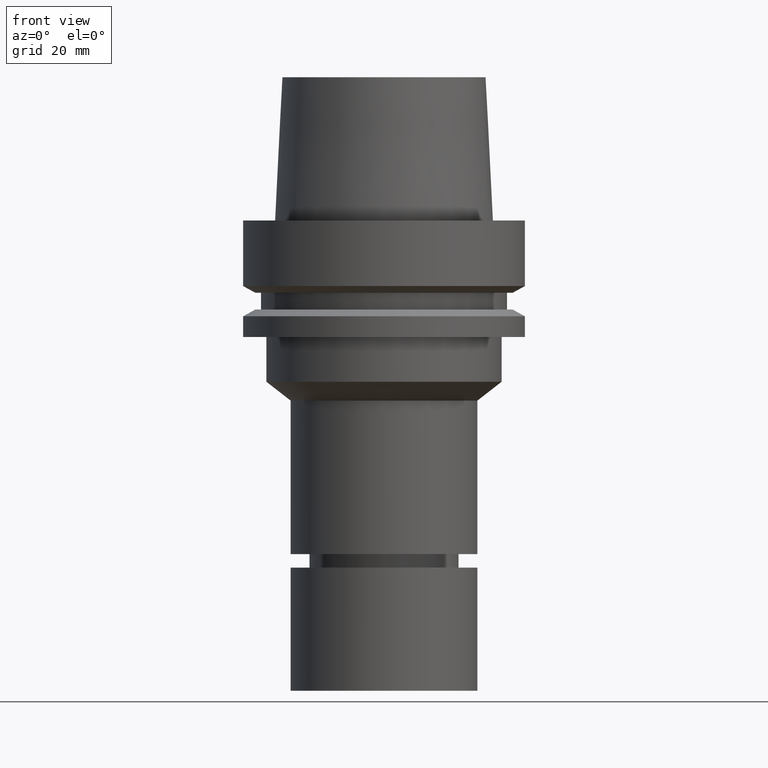
[diagram: clean part render]
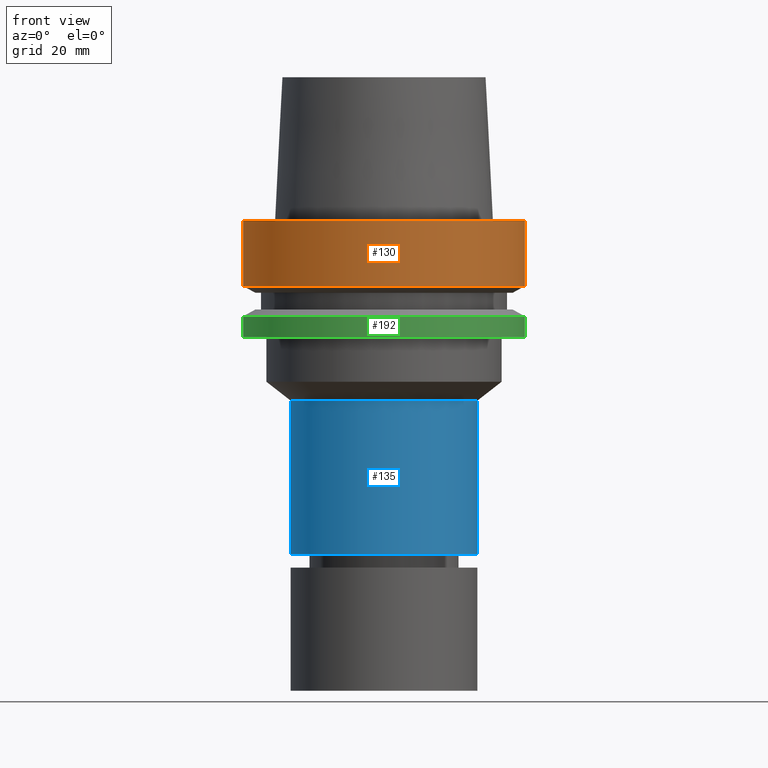
[diagram: same view with three faces highlighted in distinct colors, each labeled with its STEP entity id]
A machine part, front view with three faces highlighted in distinct colors.
Their STEP definitions:

[orange] entity #130 — the highlighted cylindrical surface (bore or boss wall) has radius 31.5 mm, axis along (-0, -0, 1).
#107=EDGE_CURVE('Unnamed[1]',#259,#259,#260,.T.);
#130=ADVANCED_FACE('Unnamed[1]',(#294,#295),#296,.T.);
#186=EDGE_CURVE('Unnamed[1]',#379,#379,#380,.T.);
#259=VERTEX_POINT('',#462);
#260=CIRCLE('',#463,31.5000000000001);
#294=FACE_BOUND('',#504,.T.);
#295=FACE_BOUND('',#505,.T.);
#296=CYLINDRICAL_SURFACE('',#506,31.5);
#379=VERTEX_POINT('',#611);
#380=CIRCLE('',#612,31.5);
#462=CARTESIAN_POINT('',(-3.88267476788467E-031,31.5000000000001,3.85763741731417E-015));
#463=AXIS2_PLACEMENT_3D('',#680,#681,#682);
#504=EDGE_LOOP('',(#718));
#505=EDGE_LOOP('',(#719));
#506=AXIS2_PLACEMENT_3D('',#720,#721,#722);
#611=CARTESIAN_POINT('',(8.95369947681261E-016,31.5,-14.6225009252407));
#612=AXIS2_PLACEMENT_3D('',#811,#812,#813);
#680=CARTESIAN_POINT('',(0.0,0.0,0.0));
#681=DIRECTION('',(-6.12323399573677E-017,-1.22464679914735E-016,1.0));
#682=DIRECTION('',(-1.23259516440783E-032,1.0,1.22464679914735E-016));
#718=ORIENTED_EDGE('',*,*,#107,.F.);
#719=ORIENTED_EDGE('',*,*,#186,.T.);
#720=CARTESIAN_POINT('',(4.47684973840631E-016,8.95369947681262E-016,-7.31125046262035));
#721=DIRECTION('',(-6.12323399573677E-017,-1.22464679914735E-016,1.0));
#722=DIRECTION('',(-1.23259516440783E-032,1.0,1.22464679914735E-016));
#811=CARTESIAN_POINT('',(8.95369947681262E-016,1.79073989536252E-015,-14.6225009252407));
#812=DIRECTION('',(-6.12323399573677E-017,-1.22464679914735E-016,1.0));
#813=DIRECTION('',(-1.23259516440783E-032,1.0,1.22464679914735E-016));

[blue] entity #135 — the highlighted cylindrical surface (bore or boss wall) has radius 21 mm, axis along (-0, -0, 1).
#135=ADVANCED_FACE('Unnamed[1]',(#302,#303),#304,.T.);
#145=EDGE_CURVE('Unnamed[1]',#319,#319,#320,.T.);
#162=EDGE_CURVE('Unnamed[1]',#343,#343,#344,.T.);
#302=FACE_BOUND('',#514,.T.);
#303=FACE_BOUND('',#515,.T.);
#304=CYLINDRICAL_SURFACE('',#516,21.0);
#319=VERTEX_POINT('',#535);
#320=CIRCLE('',#536,21.0);
#343=VERTEX_POINT('',#565);
#344=CIRCLE('',#566,21.0);
#514=EDGE_LOOP('',(#727));
#515=EDGE_LOOP('',(#728));
#516=AXIS2_PLACEMENT_3D('',#729,#730,#731);
#535=CARTESIAN_POINT('',(2.46243754685596E-015,21.0,-40.21465697));
#536=AXIS2_PLACEMENT_3D('',#747,#748,#749);
#565=CARTESIAN_POINT('',(4.56180932682389E-015,21.0,-74.5));
#566=AXIS2_PLACEMENT_3D('',#771,#772,#773);
#727=ORIENTED_EDGE('',*,*,#145,.F.);
#728=ORIENTED_EDGE('',*,*,#162,.T.);
#729=CARTESIAN_POINT('',(3.51212343683993E-015,7.02424687367985E-015,-57.357328485));
#730=DIRECTION('',(-6.12323399573677E-017,-1.22464679914735E-016,1.0));
#731=DIRECTION('',(-1.23259516440783E-032,1.0,1.22464679914735E-016));
#747=CARTESIAN_POINT('',(2.46243754685596E-015,4.92487509371193E-015,-40.21465697));
#748=DIRECTION('',(-6.12323399573677E-017,-1.22464679914735E-016,1.0));
#749=DIRECTION('',(-1.23259516440783E-032,1.0,1.22464679914735E-016));
#771=CARTESIAN_POINT('',(4.56180932682389E-015,9.12361865364778E-015,-74.5));
#772=DIRECTION('',(-6.12323399573677E-017,-1.22464679914735E-016,1.0));
#773=DIRECTION('',(-1.23259516440783E-032,1.0,1.22464679914735E-016));

[green] entity #192 — the highlighted cylindrical surface (bore or boss wall) has radius 31.5 mm, axis along (-0, -0, 1).
#94=EDGE_CURVE('Unnamed[1]',#239,#239,#240,.T.);
#170=EDGE_CURVE('Unnamed[1]',#354,#354,#355,.T.);
#192=ADVANCED_FACE('Unnamed[1]',(#388,#389),#390,.T.);
#239=VERTEX_POINT('',#437);
#240=CIRCLE('',#438,31.4999999999998);
#354=VERTEX_POINT('',#579);
#355=CIRCLE('',#580,31.5);
#388=FACE_BOUND('',#622,.T.);
#389=FACE_BOUND('',#623,.T.);
#390=CYLINDRICAL_SURFACE('',#624,31.4999999999999);
#437=CARTESIAN_POINT('',(1.59204083889155E-015,31.4999999999998,-25.9999999999999));
#438=AXIS2_PLACEMENT_3D('',#657,#658,#659);
#579=CARTESIAN_POINT('',(1.30899429078397E-015,31.5,-21.3774990747592));
#580=AXIS2_PLACEMENT_3D('',#784,#785,#786);
#622=EDGE_LOOP('',(#821));
#623=EDGE_LOOP('',(#822));
#624=AXIS2_PLACEMENT_3D('',#823,#824,#825);
#657=CARTESIAN_POINT('',(1.59204083889155E-015,3.1840816777831E-015,-25.9999999999999));
#658=DIRECTION('',(-6.12323399573676E-017,-1.22464679914735E-016,1.0));
#659=DIRECTION('',(-1.23259516440783E-032,1.0,1.22464679914735E-016));
#784=CARTESIAN_POINT('',(1.30899429078397E-015,2.61798858156794E-015,-21.3774990747592));
#785=DIRECTION('',(-6.12323399573677E-017,-1.22464679914735E-016,1.0));
#786=DIRECTION('',(-1.23259516440783E-032,1.0,1.22464679914735E-016));
#821=ORIENTED_EDGE('',*,*,#170,.F.);
#822=ORIENTED_EDGE('',*,*,#94,.T.);
#823=CARTESIAN_POINT('',(1.45051756483776E-015,2.90103512967552E-015,-23.6887495373796));
#824=DIRECTION('',(-6.12323399573677E-017,-1.22464679914735E-016,1.0));
#825=DIRECTION('',(-1.23259516440783E-032,1.0,1.22464679914735E-016));